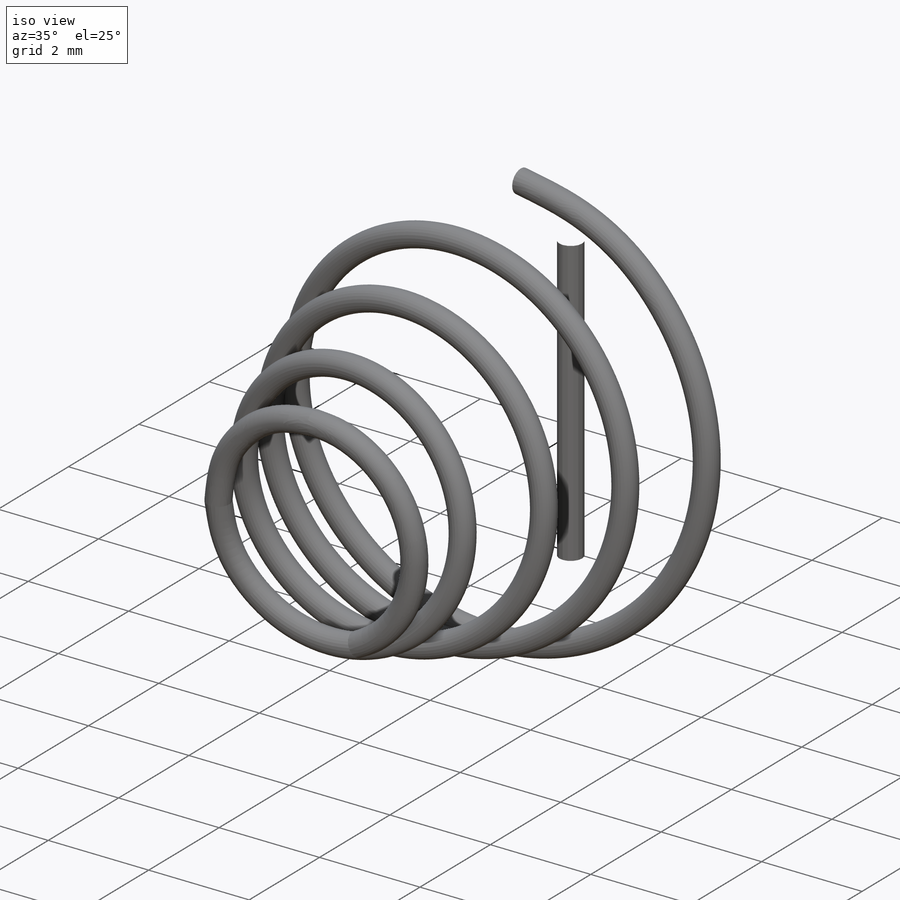
[diagram: iso view]
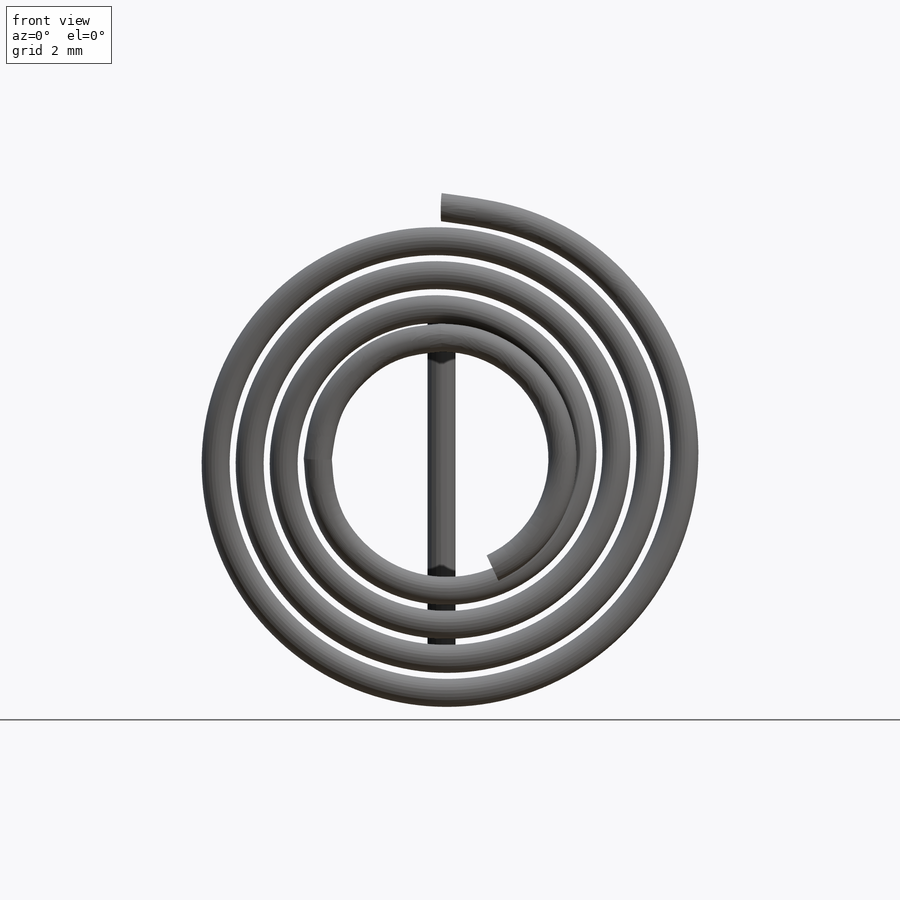
[diagram: front view]
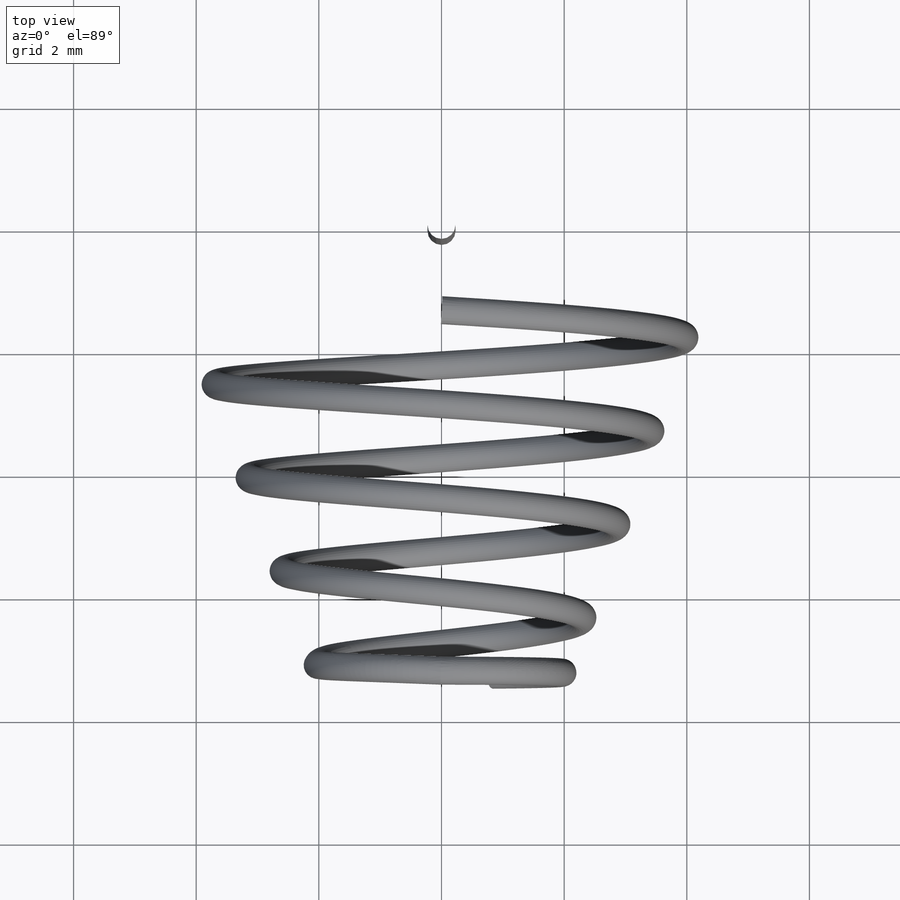
[diagram: top view]
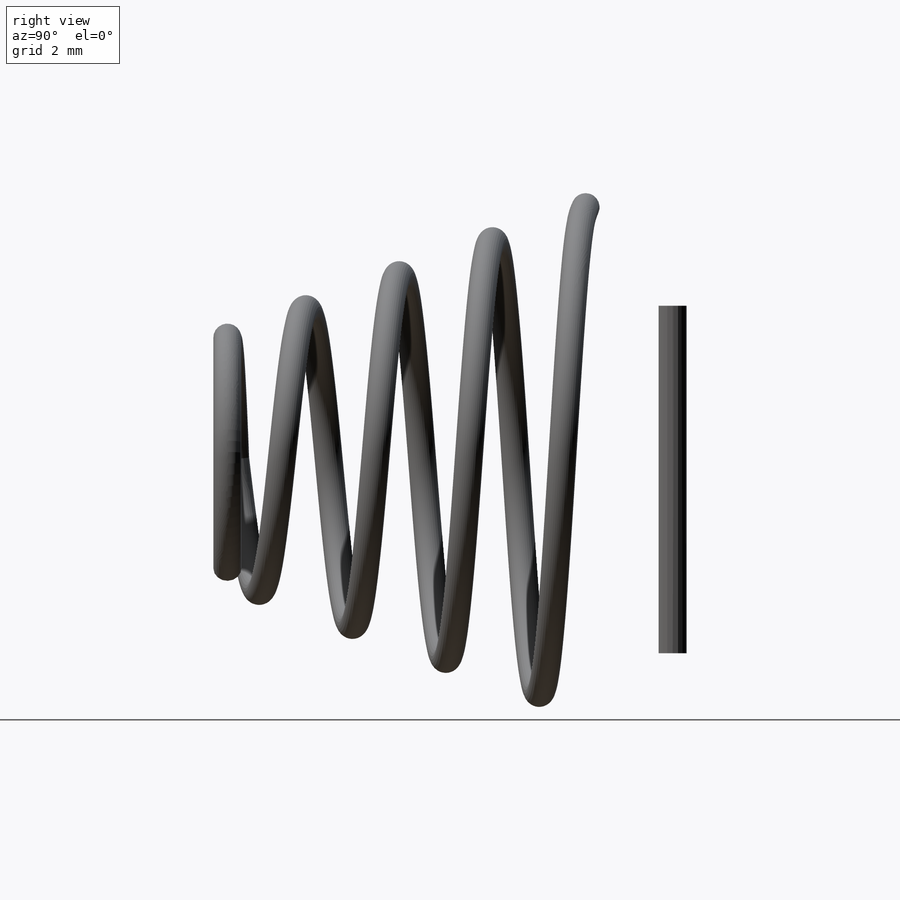
[diagram: right view]
SOLIDWORKS PART (.sldprt)
format: sldprt  version: not decoded by parser v0  size: 997,376 bytes
history: native  units: mm
features: sketch x13, plane x10, helix x3, material x1, surface_op x1, sweep x1 (+11 scaffold rows collapsed)
feature tree (40):
  scaffold x11  (default folders/planes/origin — collapsed)
  material  "Material <not specified>"
  sketch  "Sketch1"  dims[c1.D1=1.524mm c1.D2=1.524mm c2.D1=8.89mm c2.D2=~2.49192mm c2.D3=3.175mm]
  sketch  "Sketch3"
  plane  "Plane5"
  sketch  "Sketch16"
  sketch  "Sketch22"
  surface_op  "Surface-Extrude1"
  plane  "Plane11"
  sketch  "Sketch28"
  sketch  "Sketch29"
  helix  "Helix2"  Pitch=0.9525mm
  plane  "Plane12"
  plane  "Plane13"
  sketch  "Sketch32"
  sketch  "Sketch30"
  helix  "Helix3"  Pitch=5.715mm
  plane  "Plane14"
  plane  "Plane15"
  sketch  "Sketch34"
  sketch  "Sketch33"
  helix  "Helix4"  Pitch=0.127mm
  plane  "Plane16"
  sketch  "Sketch35"
  plane  "Plane17"
  sketch  "Sketch36"  dims[c1.D1=~3.641115mm c2.D1=25.0deg]
  plane  "Plane18"
  plane  "Plane19"
  sketch  "Sketch38"  dims[D1=0.4572mm]
  sweep  "Boss-Sweep7"
decode coverage: 6 of 18 modeling features carry decoded parameters
note: ~ marks probable driven/reference dimensions
note: suppression state not decoded; provenance and decode notes live in map.json
